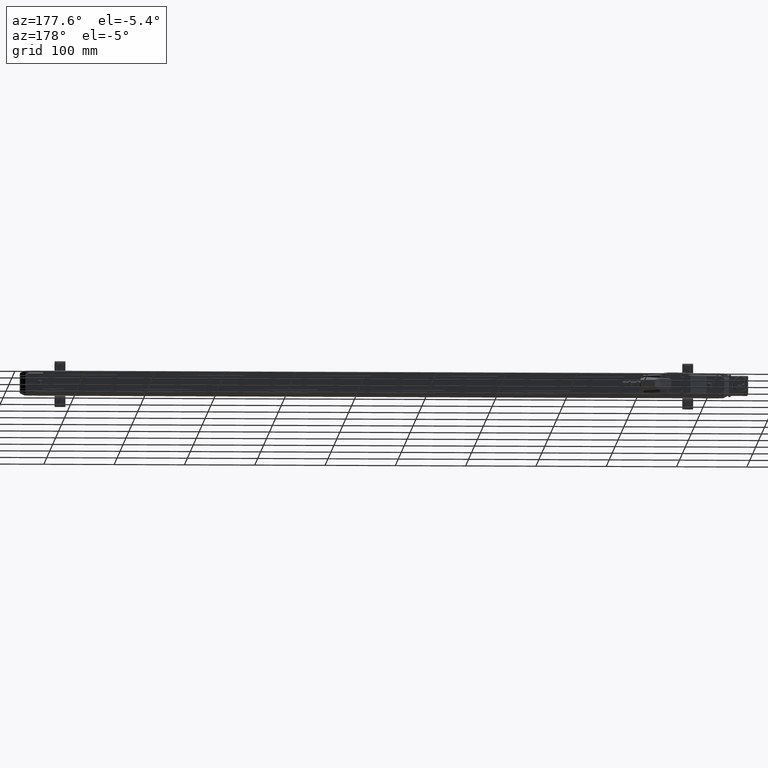
[diagram: clean part render]
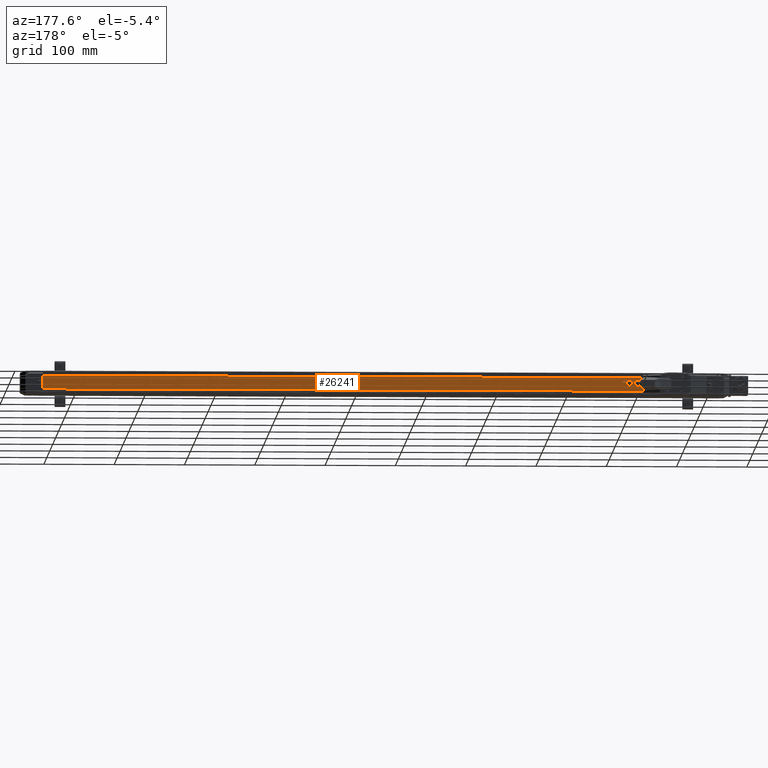
[diagram: same view with one face highlighted and labeled with its STEP entity id]
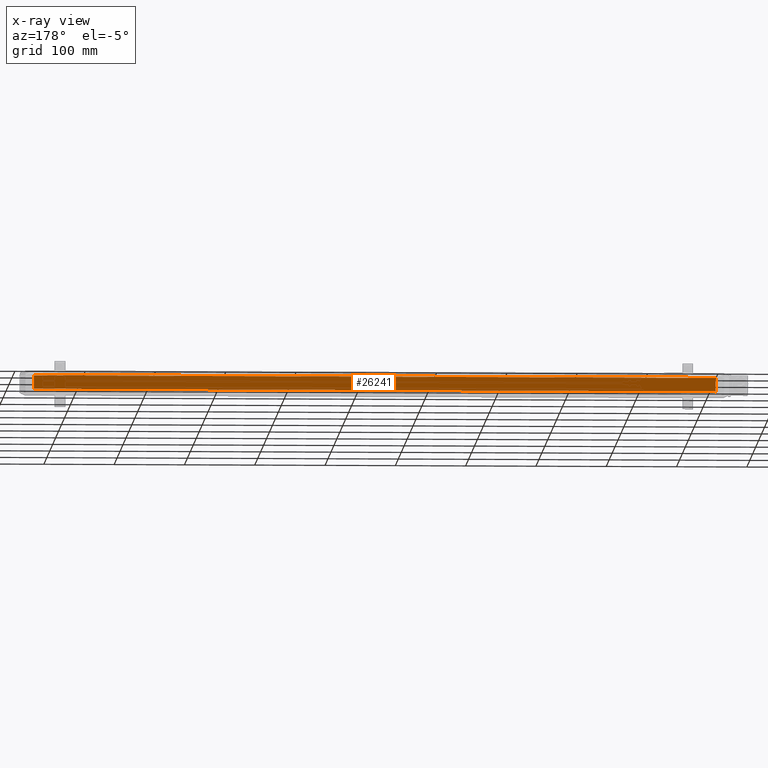
[diagram: x-ray of the same camera — body ghosted, the highlighted face saturated]
A machine part, auxiliary view. The second image highlights one B-rep face of the part: STEP entity #26241.
The next image is the same camera in x-ray: the body ghosted, the highlighted face saturated — about 0% of this face is hidden behind the body in this view.
In plain terms, the highlighted planar face has unit normal (-0, -1, -0).
Its self-contained STEP definition (entity closure, byte-faithful):
#535 = CARTESIAN_POINT ( 'NONE',  ( 29.33070866141732225, 1.244094468976377987, -0.2731299497244098484 ) ) ;
#1118 = LINE ( 'NONE', #39957, #14793 ) ;
#1558 = CARTESIAN_POINT ( 'NONE',  ( 29.33070866141732225, 1.244094468976377987, -0.5019685431158645850 ) ) ;
#3081 = VERTEX_POINT ( 'NONE', #30904 ) ;
#3229 = DIRECTION ( 'NONE',  ( 1.000000000000000000, -6.829894528618840264E-25, -1.341063538875720069E-28 ) ) ;
#3681 = VECTOR ( 'NONE', #20536, 39.37007874015748143 ) ;
#5346 = LINE ( 'NONE', #27208, #24415 ) ;
#6129 = CARTESIAN_POINT ( 'NONE',  ( 29.33070866141732225, 1.244094468976377987, -0.2731299497244098484 ) ) ;
#8576 = CARTESIAN_POINT ( 'NONE',  ( -8.858267716535433323, 1.244094468976377987, -1.025948047716535472 ) ) ;
#8633 = LINE ( 'NONE', #26094, #34020 ) ;
#9571 = CARTESIAN_POINT ( 'NONE',  ( 29.33070866141732225, 1.244094468976377987, -1.025948047716535472 ) ) ;
#9836 = PLANE ( 'NONE',  #34447 ) ;
#10308 = LINE ( 'NONE', #6129, #3681 ) ;
#10413 = CARTESIAN_POINT ( 'NONE',  ( -8.858267716535433323, 1.244094468976377987, -0.7974689980202992468 ) ) ;
#10645 = CARTESIAN_POINT ( 'NONE',  ( -8.858267716535433323, 1.244094468976377987, -0.2731299497244098484 ) ) ;
#11102 = DIRECTION ( 'NONE',  ( -1.341063538875099911E-28, 9.072071993112328873E-17, -1.000000000000000000 ) ) ;
#11429 = DIRECTION ( 'NONE',  ( -1.341063538875099911E-28, 9.072071993112328873E-17, -1.000000000000000000 ) ) ;
#12343 = DIRECTION ( 'NONE',  ( 1.000000000000000000, -6.829894528618840264E-25, -1.341063538875720069E-28 ) ) ;
#12619 = ORIENTED_EDGE ( 'NONE', *, *, #40772, .T. ) ;
#12710 = ORIENTED_EDGE ( 'NONE', *, *, #42928, .F. ) ;
#12754 = VERTEX_POINT ( 'NONE', #23526 ) ;
#12862 = DIRECTION ( 'NONE',  ( -6.829894528618840264E-25, -1.000000000000000000, -9.072071993112328873E-17 ) ) ;
#12886 = VERTEX_POINT ( 'NONE', #9571 ) ;
#14793 = VECTOR ( 'NONE', #11102, 39.37007874015748143 ) ;
#14887 = VERTEX_POINT ( 'NONE', #21400 ) ;
#15263 = VECTOR ( 'NONE', #11429, 39.37007874015748143 ) ;
#16802 = FACE_OUTER_BOUND ( 'NONE', #18711, .T. ) ;
#16986 = DIRECTION ( 'NONE',  ( -1.341063538875099911E-28, 9.072071993112328873E-17, -1.000000000000000000 ) ) ;
#18711 = EDGE_LOOP ( 'NONE', ( #37379, #33184, #12619, #45081, #35107, #42597, #12710, #32975 ) ) ;
#20205 = DIRECTION ( 'NONE',  ( -1.341063538875099911E-28, 9.072071993112328873E-17, -1.000000000000000000 ) ) ;
#20536 = DIRECTION ( 'NONE',  ( -1.341063538875099911E-28, 9.072071993112328873E-17, -1.000000000000000000 ) ) ;
#20630 = LINE ( 'NONE', #10645, #39330 ) ;
#20989 = VECTOR ( 'NONE', #23478, 39.37007874015748143 ) ;
#21394 = EDGE_CURVE ( 'NONE', #25019, #12886, #8633, .T. ) ;
#21400 = CARTESIAN_POINT ( 'NONE',  ( 29.33070866141732225, 1.244094468976377987, -0.2731299497244098484 ) ) ;
#22939 = EDGE_CURVE ( 'NONE', #14887, #37108, #10308, .T. ) ;
#23478 = DIRECTION ( 'NONE',  ( -1.341063538875099911E-28, 9.072071993112328873E-17, -1.000000000000000000 ) ) ;
#23526 = CARTESIAN_POINT ( 'NONE',  ( 29.33070866141732225, 1.244094468976377987, -0.7971094529879507729 ) ) ;
#24415 = VECTOR ( 'NONE', #20205, 39.37007874015748143 ) ;
#25019 = VERTEX_POINT ( 'NONE', #8576 ) ;
#26094 = CARTESIAN_POINT ( 'NONE',  ( -8.858267716535433323, 1.244094468976377987, -1.025948047716535472 ) ) ;
#26241 = ADVANCED_FACE ( 'NONE', ( #16802 ), #9836, .F. ) ;
#27208 = CARTESIAN_POINT ( 'NONE',  ( -8.858267716535433323, 1.244094468976377987, -0.2731299497244098484 ) ) ;
#30025 = LINE ( 'NONE', #44256, #20989 ) ;
#30904 = CARTESIAN_POINT ( 'NONE',  ( -8.858267716535433323, 1.244094468976377987, -0.2731299497244098484 ) ) ;
#30963 = LINE ( 'NONE', #37949, #42592 ) ;
#31469 = EDGE_CURVE ( 'NONE', #32796, #36974, #30025, .T. ) ;
#32796 = VERTEX_POINT ( 'NONE', #33967 ) ;
#32975 = ORIENTED_EDGE ( 'NONE', *, *, #42712, .T. ) ;
#33059 = LINE ( 'NONE', #535, #15263 ) ;
#33184 = ORIENTED_EDGE ( 'NONE', *, *, #35228, .T. ) ;
#33967 = CARTESIAN_POINT ( 'NONE',  ( -8.858267716535433323, 1.244094468976377987, -0.5023280881482126148 ) ) ;
#34020 = VECTOR ( 'NONE', #12343, 39.37007874015748143 ) ;
#34447 = AXIS2_PLACEMENT_3D ( 'NONE', #44785, #12862, #38244 ) ;
#35107 = ORIENTED_EDGE ( 'NONE', *, *, #44138, .F. ) ;
#35228 = EDGE_CURVE ( 'NONE', #37108, #12754, #30963, .T. ) ;
#36974 = VERTEX_POINT ( 'NONE', #10413 ) ;
#37108 = VERTEX_POINT ( 'NONE', #1558 ) ;
#37379 = ORIENTED_EDGE ( 'NONE', *, *, #22939, .T. ) ;
#37949 = CARTESIAN_POINT ( 'NONE',  ( 29.33070866141732225, 1.244094468976377987, -0.2731299497244098484 ) ) ;
#38244 = DIRECTION ( 'NONE',  ( 1.341063538875099911E-28, -9.072071993112328873E-17, 1.000000000000000000 ) ) ;
#39330 = VECTOR ( 'NONE', #3229, 39.37007874015748143 ) ;
#39957 = CARTESIAN_POINT ( 'NONE',  ( -8.858267716535433323, 1.244094468976377987, -0.2731299497244098484 ) ) ;
#40772 = EDGE_CURVE ( 'NONE', #12754, #12886, #33059, .T. ) ;
#42592 = VECTOR ( 'NONE', #16986, 39.37007874015748143 ) ;
#42597 = ORIENTED_EDGE ( 'NONE', *, *, #31469, .F. ) ;
#42712 = EDGE_CURVE ( 'NONE', #3081, #14887, #20630, .T. ) ;
#42928 = EDGE_CURVE ( 'NONE', #3081, #32796, #1118, .T. ) ;
#44138 = EDGE_CURVE ( 'NONE', #36974, #25019, #5346, .T. ) ;
#44256 = CARTESIAN_POINT ( 'NONE',  ( -8.858267716535433323, 1.244094468976377987, -0.2731299497244098484 ) ) ;
#44785 = CARTESIAN_POINT ( 'NONE',  ( -8.858267716535433323, 1.244094468976377987, -0.2731299497244098484 ) ) ;
#45081 = ORIENTED_EDGE ( 'NONE', *, *, #21394, .F. ) ;